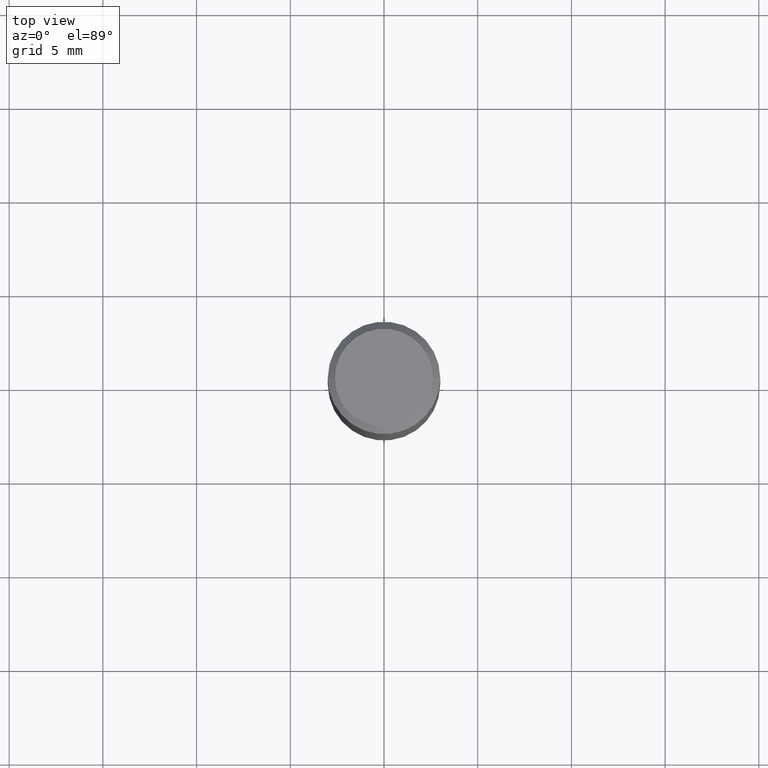
[diagram: clean part render]
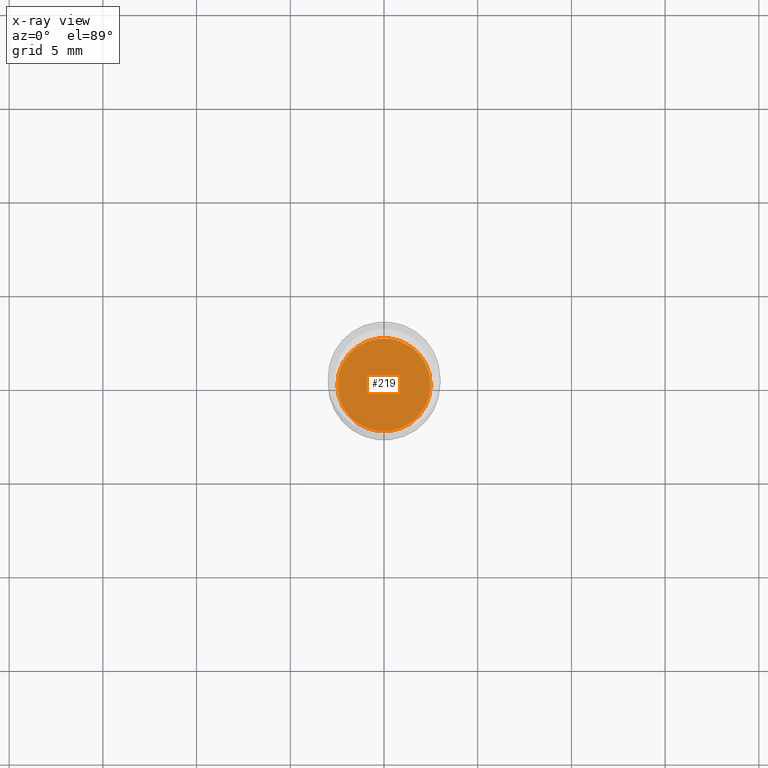
[diagram: x-ray — body ghosted, one internal face saturated and labeled with its STEP entity id]
A machine part, top view, then the same camera in x-ray: the body is ghosted and one INTERNAL B-rep face — a face not visible from any outside direction — is saturated and labeled: STEP entity #219.
In plain terms, the highlighted planar face has unit normal (-0, 0, 1).
Its self-contained STEP definition (entity closure, byte-faithful):
#1 = VERTEX_POINT ( 'NONE', #135 ) ;
#10 = CIRCLE ( 'NONE', #105, 0.09794999999999999540 ) ;
#28 = DIRECTION ( 'NONE',  ( -2.438088387897960049E-29, 3.491481338843145188E-15, 1.000000000000000000 ) ) ;
#36 = PLANE ( 'NONE',  #302 ) ;
#40 = EDGE_LOOP ( 'NONE', ( #287, #465 ) ) ;
#61 = CARTESIAN_POINT ( 'NONE',  ( 0.09794999999999999540, -3.721919107206791548E-15, -0.8701000000000002066 ) ) ;
#94 = CARTESIAN_POINT ( 'NONE',  ( 2.127802408261687534E-29, -3.037937912927421601E-15, -0.8701000000000000956 ) ) ;
#105 = AXIS2_PLACEMENT_3D ( 'NONE', #459, #414, #269 ) ;
#135 = CARTESIAN_POINT ( 'NONE',  ( -0.09794999999999999540, -2.339312076076292793E-15, -0.8701000000000002066 ) ) ;
#167 = FACE_OUTER_BOUND ( 'NONE', #40, .T. ) ;
#181 = DIRECTION ( 'NONE',  ( 1.000000000000000000, -6.982962677686265133E-15, 0.000000000000000000 ) ) ;
#212 = DIRECTION ( 'NONE',  ( -2.445468806185136597E-29, 3.491481338843145583E-15, 1.000000000000000000 ) ) ;
#219 = ADVANCED_FACE ( 'NONE', ( #167 ), #36, .F. ) ;
#269 = DIRECTION ( 'NONE',  ( 1.000000000000000000, -6.982962677686265133E-15, 0.000000000000000000 ) ) ;
#287 = ORIENTED_EDGE ( 'NONE', *, *, #339, .F. ) ;
#302 = AXIS2_PLACEMENT_3D ( 'NONE', #94, #28, #315 ) ;
#315 = DIRECTION ( 'NONE',  ( 1.000000000000000000, -6.982962677686265922E-15, 4.876176775795935793E-29 ) ) ;
#339 = EDGE_CURVE ( 'NONE', #432, #1, #344, .T. ) ;
#344 = CIRCLE ( 'NONE', #415, 0.09794999999999999540 ) ;
#394 = CARTESIAN_POINT ( 'NONE',  ( 2.127802408261687814E-29, -3.037937912927421995E-15, -0.8701000000000002066 ) ) ;
#414 = DIRECTION ( 'NONE',  ( -2.445468806185136597E-29, 3.491481338843145583E-15, 1.000000000000000000 ) ) ;
#415 = AXIS2_PLACEMENT_3D ( 'NONE', #394, #212, #181 ) ;
#432 = VERTEX_POINT ( 'NONE', #61 ) ;
#437 = EDGE_CURVE ( 'NONE', #1, #432, #10, .T. ) ;
#459 = CARTESIAN_POINT ( 'NONE',  ( 2.127802408261687814E-29, -3.037937912927421995E-15, -0.8701000000000002066 ) ) ;
#465 = ORIENTED_EDGE ( 'NONE', *, *, #437, .F. ) ;